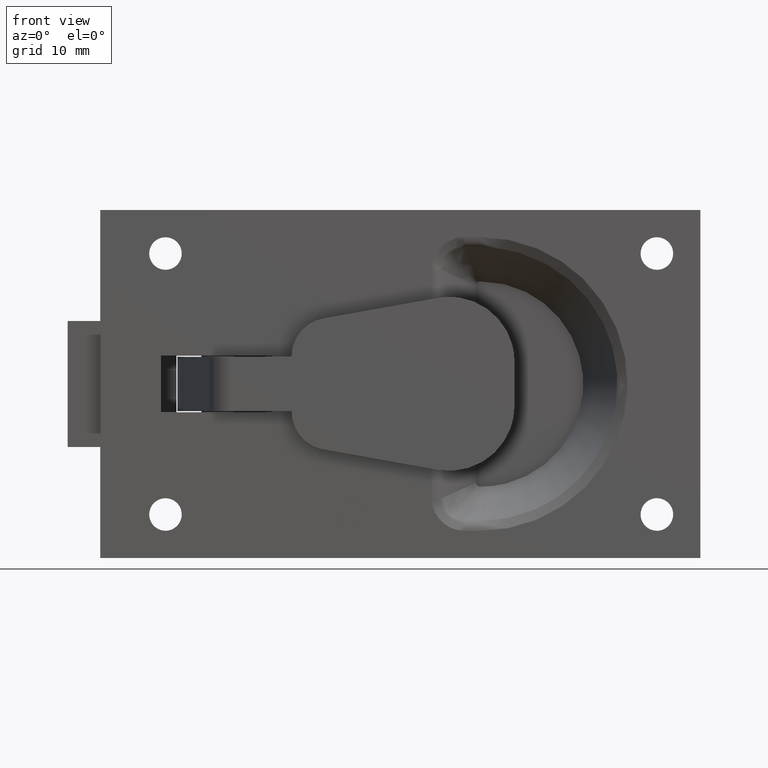
[diagram: clean part render]
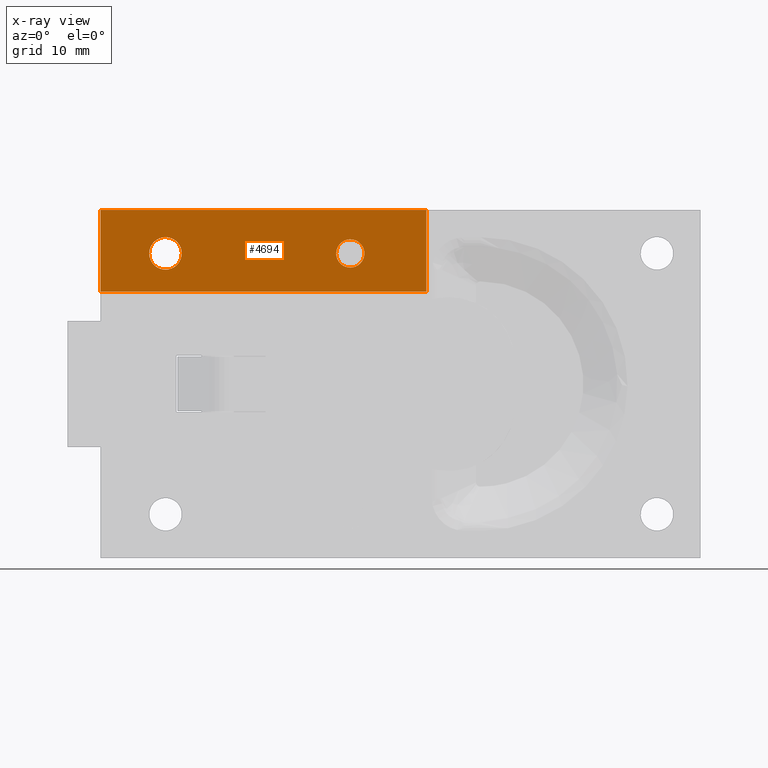
[diagram: x-ray — body ghosted, one internal face saturated and labeled with its STEP entity id]
A machine part, front view, then the same camera in x-ray: the body is ghosted and one INTERNAL B-rep face — a face not visible from any outside direction — is saturated and labeled: STEP entity #4694.
In plain terms, the highlighted face is a freeform B-spline surface patch.
Its self-contained STEP definition (entity closure, byte-faithful):
#2766=CARTESIAN_POINT('',(-3.311588679270482,1.200001000000062,11.813807996809190));
#2767=VERTEX_POINT('',#2766);
#2768=CARTESIAN_POINT('',(-4.799987999999900,1.200001000000062,10.500000000000000));
#2769=VERTEX_POINT('',#2768);
#2770=CARTESIAN_POINT('',(-3.311588679270483,1.200001000000062,11.813807996809194));
#2771=CARTESIAN_POINT('',(-3.475940099901981,1.200001000000062,10.500000000000002));
#2772=CARTESIAN_POINT('',(-4.799987999999900,1.200001000000062,10.500000000000000));
#2780=(BOUNDED_CURVE()B_SPLINE_CURVE(2,(#2770,#2771,#2772),.UNSPECIFIED.,.F.,.U.)B_SPLINE_CURVE_WITH_KNOTS((3,3),(0.771473928986806,1.0),.UNSPECIFIED.)CURVE()GEOMETRIC_REPRESENTATION_ITEM()RATIONAL_B_SPLINE_CURVE((0.954005430243466,0.732265053912616,1.0))REPRESENTATION_ITEM(''));
#2781=EDGE_CURVE('',#2767,#2769,#2780,.T.);
#2822=CARTESIAN_POINT('',(-6.299930884593301,1.200001000000062,12.013089803574889));
#2823=VERTEX_POINT('',#2822);
#2829=CARTESIAN_POINT('',(-4.799987999999900,1.200001000000062,10.500000000000000));
#2830=CARTESIAN_POINT('',(-6.299987999999900,1.200001000000062,10.500000000000002));
#2831=CARTESIAN_POINT('',(-6.299987999999900,1.200001000000062,12.0));
#2832=CARTESIAN_POINT('',(-6.299987999999900,1.200001000000062,12.006545026558403));
#2833=CARTESIAN_POINT('',(-6.299930884593301,1.200001000000062,12.013089803574893));
#2841=(BOUNDED_CURVE()B_SPLINE_CURVE(2,(#2829,#2830,#2831,#2832,#2833),.UNSPECIFIED.,.F.,.U.)B_SPLINE_CURVE_WITH_KNOTS((3,2,3),(0.0,0.250000000000000,0.251539894411866),.UNSPECIFIED.)CURVE()GEOMETRIC_REPRESENTATION_ITEM()RATIONAL_B_SPLINE_CURVE((1.0,0.707106781186548,1.0,0.998195901476302,0.996414027922486))REPRESENTATION_ITEM(''));
#2842=EDGE_CURVE('',#2769,#2823,#2841,.T.);
#2869=CARTESIAN_POINT('',(-4.799987999999900,1.200001000000062,13.500000000000000));
#2870=VERTEX_POINT('',#2869);
#2871=CARTESIAN_POINT('',(-4.799987999999900,1.200001000000062,13.500000000000000));
#2872=CARTESIAN_POINT('',(-3.299987999999900,1.200001000000062,13.500000000000000));
#2873=CARTESIAN_POINT('',(-3.299987999999900,1.200001000000062,12.0));
#2874=CARTESIAN_POINT('',(-3.299987999999900,1.200001000000062,11.906542608627863));
#2875=CARTESIAN_POINT('',(-3.311588679270482,1.200001000000062,11.813807996809187));
#2883=(BOUNDED_CURVE()B_SPLINE_CURVE(2,(#2871,#2872,#2873,#2874,#2875),.UNSPECIFIED.,.F.,.U.)B_SPLINE_CURVE_WITH_KNOTS((3,2,3),(0.500000000000000,0.750000000000000,0.771473928986805),.UNSPECIFIED.)CURVE()GEOMETRIC_REPRESENTATION_ITEM()RATIONAL_B_SPLINE_CURVE((1.0,0.707106781186548,1.0,0.974841727273933,0.954005430243467))REPRESENTATION_ITEM(''));
#2884=EDGE_CURVE('',#2870,#2767,#2883,.T.);
#2886=CARTESIAN_POINT('',(-6.299930884593302,1.200001000000062,12.013089803574896));
#2887=CARTESIAN_POINT('',(-6.286954815243340,1.200001000000062,13.500000000000000));
#2888=CARTESIAN_POINT('',(-4.799987999999900,1.200001000000062,13.500000000000000));
#2896=(BOUNDED_CURVE()B_SPLINE_CURVE(2,(#2886,#2887,#2888),.UNSPECIFIED.,.F.,.U.)B_SPLINE_CURVE_WITH_KNOTS((3,3),(0.251539894411867,0.500000000000000),.UNSPECIFIED.)CURVE()GEOMETRIC_REPRESENTATION_ITEM()RATIONAL_B_SPLINE_CURVE((0.996414027922485,0.708910879710245,1.0))REPRESENTATION_ITEM(''));
#2897=EDGE_CURVE('',#2823,#2870,#2896,.T.);
#2952=CARTESIAN_POINT('',(13.490004077959011,1.200001000000062,11.838633597182801));
#2953=VERTEX_POINT('',#2952);
#2954=CARTESIAN_POINT('',(12.200058000000000,1.200001000000062,10.699999999999999));
#2955=VERTEX_POINT('',#2954);
#2956=CARTESIAN_POINT('',(13.490004077959011,1.200001000000062,11.838633597182794));
#2957=CARTESIAN_POINT('',(13.347566179991926,1.200001000000062,10.700000000000001));
#2958=CARTESIAN_POINT('',(12.200058000000000,1.200001000000062,10.699999999999999));
#2966=(BOUNDED_CURVE()B_SPLINE_CURVE(2,(#2956,#2957,#2958),.UNSPECIFIED.,.F.,.U.)B_SPLINE_CURVE_WITH_KNOTS((3,3),(0.771473929000359,1.0),.UNSPECIFIED.)CURVE()GEOMETRIC_REPRESENTATION_ITEM()RATIONAL_B_SPLINE_CURVE((0.954005430217165,0.732265053928494,1.0))REPRESENTATION_ITEM(''));
#2967=EDGE_CURVE('',#2953,#2955,#2966,.T.);
#3008=CARTESIAN_POINT('',(10.900107500019651,1.200001000000062,12.011344496499500));
#3009=VERTEX_POINT('',#3008);
#3015=CARTESIAN_POINT('',(12.200058000000000,1.200001000000062,10.699999999999999));
#3016=CARTESIAN_POINT('',(10.900058000000001,1.200001000000062,10.700000000000001));
#3017=CARTESIAN_POINT('',(10.900058000000000,1.200001000000062,12.0));
#3018=CARTESIAN_POINT('',(10.900058000000001,1.200001000000063,12.005672356418550));
#3019=CARTESIAN_POINT('',(10.900107500019651,1.200001000000062,12.011344496499502));
#3027=(BOUNDED_CURVE()B_SPLINE_CURVE(2,(#3015,#3016,#3017,#3018,#3019),.UNSPECIFIED.,.F.,.U.)B_SPLINE_CURVE_WITH_KNOTS((3,2,3),(0.0,0.250000000000000,0.251539894430275),.UNSPECIFIED.)CURVE()GEOMETRIC_REPRESENTATION_ITEM()RATIONAL_B_SPLINE_CURVE((1.0,0.707106781186548,1.0,0.998195901454735,0.996414027879883))REPRESENTATION_ITEM(''));
#3028=EDGE_CURVE('',#2955,#3009,#3027,.T.);
#3055=CARTESIAN_POINT('',(12.200058000000000,1.200001000000062,13.300000000000001));
#3056=VERTEX_POINT('',#3055);
#3057=CARTESIAN_POINT('',(12.200058000000000,1.200001000000062,13.300000000000001));
#3058=CARTESIAN_POINT('',(13.500058000000001,1.200001000000062,13.299999999999997));
#3059=CARTESIAN_POINT('',(13.500057999999999,1.200001000000062,12.0));
#3060=CARTESIAN_POINT('',(13.500057999999996,1.200001000000062,11.919003594091707));
#3061=CARTESIAN_POINT('',(13.490004077959014,1.200001000000062,11.838633597182801));
#3069=(BOUNDED_CURVE()B_SPLINE_CURVE(2,(#3057,#3058,#3059,#3060,#3061),.UNSPECIFIED.,.F.,.U.)B_SPLINE_CURVE_WITH_KNOTS((3,2,3),(0.500000000000000,0.750000000000000,0.771473929000359),.UNSPECIFIED.)CURVE()GEOMETRIC_REPRESENTATION_ITEM()RATIONAL_B_SPLINE_CURVE((1.0,0.707106781186548,1.0,0.974841727258054,0.954005430217165))REPRESENTATION_ITEM(''));
#3070=EDGE_CURVE('',#3056,#2953,#3069,.T.);
#3072=CARTESIAN_POINT('',(10.900107500019644,1.200001000000062,12.011344496499504));
#3073=CARTESIAN_POINT('',(10.911353426923707,1.200001000000062,13.299999999999997));
#3074=CARTESIAN_POINT('',(12.200058000000000,1.200001000000062,13.300000000000001));
#3082=(BOUNDED_CURVE()B_SPLINE_CURVE(2,(#3072,#3073,#3074),.UNSPECIFIED.,.F.,.U.)B_SPLINE_CURVE_WITH_KNOTS((3,3),(0.251539894430275,0.500000000000000),.UNSPECIFIED.)CURVE()GEOMETRIC_REPRESENTATION_ITEM()RATIONAL_B_SPLINE_CURVE((0.996414027879883,0.708910879731812,1.0))REPRESENTATION_ITEM(''));
#3083=EDGE_CURVE('',#3009,#3056,#3082,.T.);
#4145=CARTESIAN_POINT('',(-10.799987999999921,1.200001000000030,8.500000000000000));
#4146=VERTEX_POINT('',#4145);
#4160=CARTESIAN_POINT('',(-10.799987999999921,1.200001000000014,16.0));
#4161=VERTEX_POINT('',#4160);
#4162=CARTESIAN_POINT('',(-10.799987999999921,1.200001000000030,8.500000000000000));
#4163=CARTESIAN_POINT('',(-10.799987999999921,1.200001000000014,16.0));
#4164=QUASI_UNIFORM_CURVE('',1,(#4162,#4163),.UNSPECIFIED.,.F.,.U.);
#4165=EDGE_CURVE('',#4146,#4161,#4164,.T.);
#4251=CARTESIAN_POINT('',(19.200011999999901,1.200001000000014,16.0));
#4252=VERTEX_POINT('',#4251);
#4258=CARTESIAN_POINT('',(19.200011999999901,1.200001000000030,8.500000000000000));
#4259=VERTEX_POINT('',#4258);
#4260=CARTESIAN_POINT('',(19.200011999999901,1.200001000000030,8.500000000000000));
#4261=CARTESIAN_POINT('',(19.200011999999901,1.200001000000014,16.0));
#4262=QUASI_UNIFORM_CURVE('',1,(#4260,#4261),.UNSPECIFIED.,.F.,.U.);
#4263=EDGE_CURVE('',#4259,#4252,#4262,.T.);
#4302=CARTESIAN_POINT('',(19.200011999999901,1.200001000000030,8.500000000000000));
#4303=CARTESIAN_POINT('',(-10.799987999999921,1.200001000000030,8.500000000000000));
#4304=QUASI_UNIFORM_CURVE('',1,(#4302,#4303),.UNSPECIFIED.,.F.,.U.);
#4305=EDGE_CURVE('',#4259,#4146,#4304,.T.);
#4529=CARTESIAN_POINT('',(19.200011999999901,1.200001000000014,16.0));
#4530=CARTESIAN_POINT('',(-10.799987999999921,1.200001000000014,16.0));
#4531=QUASI_UNIFORM_CURVE('',1,(#4529,#4530),.UNSPECIFIED.,.F.,.U.);
#4532=EDGE_CURVE('',#4252,#4161,#4531,.T.);
#4671=CARTESIAN_POINT('',(-12.298487941854090,1.200001000000014,16.374624985463541));
#4672=CARTESIAN_POINT('',(-12.298487941854090,1.200001000000014,8.125374813370780));
#4673=CARTESIAN_POINT('',(20.698512746516780,1.200001000000014,16.374624985463541));
#4674=CARTESIAN_POINT('',(20.698512746516780,1.200001000000014,8.125374813370780));
#4675=B_SPLINE_SURFACE_WITH_KNOTS('',1,1,((#4671,#4673),(#4672,#4674)),.UNSPECIFIED.,.F.,.F.,.U.,(2,2),(2,2),(0.0,8.249250172092765),(0.0,32.997000688370868),.UNSPECIFIED.);
#4676=ORIENTED_EDGE('',*,*,#4165,.F.);
#4677=ORIENTED_EDGE('',*,*,#4305,.F.);
#4678=ORIENTED_EDGE('',*,*,#4263,.T.);
#4679=ORIENTED_EDGE('',*,*,#4532,.T.);
#4680=EDGE_LOOP('',(#4676,#4677,#4678,#4679));
#4681=FACE_OUTER_BOUND('',#4680,.T.);
#4682=ORIENTED_EDGE('',*,*,#3028,.T.);
#4683=ORIENTED_EDGE('',*,*,#3083,.T.);
#4684=ORIENTED_EDGE('',*,*,#3070,.T.);
#4685=ORIENTED_EDGE('',*,*,#2967,.T.);
#4686=EDGE_LOOP('',(#4682,#4683,#4684,#4685));
#4687=FACE_BOUND('',#4686,.T.);
#4688=ORIENTED_EDGE('',*,*,#2842,.T.);
#4689=ORIENTED_EDGE('',*,*,#2897,.T.);
#4690=ORIENTED_EDGE('',*,*,#2884,.T.);
#4691=ORIENTED_EDGE('',*,*,#2781,.T.);
#4692=EDGE_LOOP('',(#4688,#4689,#4690,#4691));
#4693=FACE_BOUND('',#4692,.T.);
#4694=ADVANCED_FACE('',(#4681,#4687,#4693),#4675,.T.);